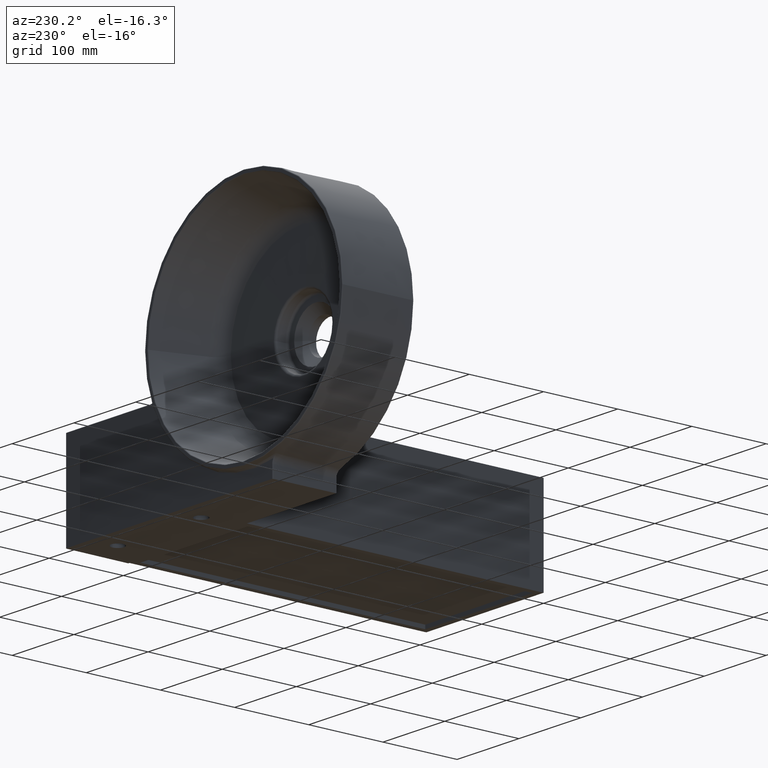
[diagram: clean part render]
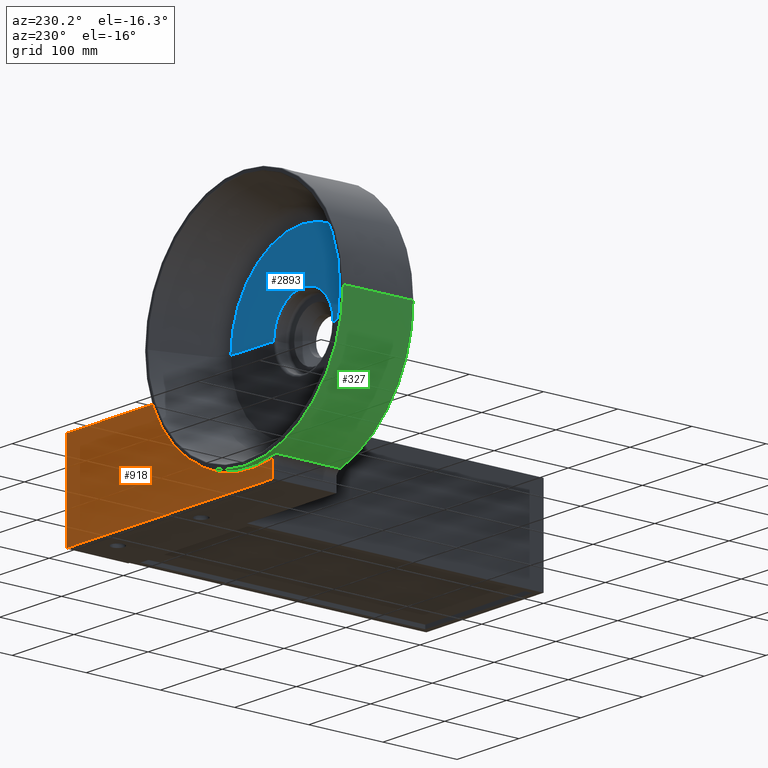
[diagram: same view with three faces highlighted in distinct colors, each labeled with its STEP entity id]
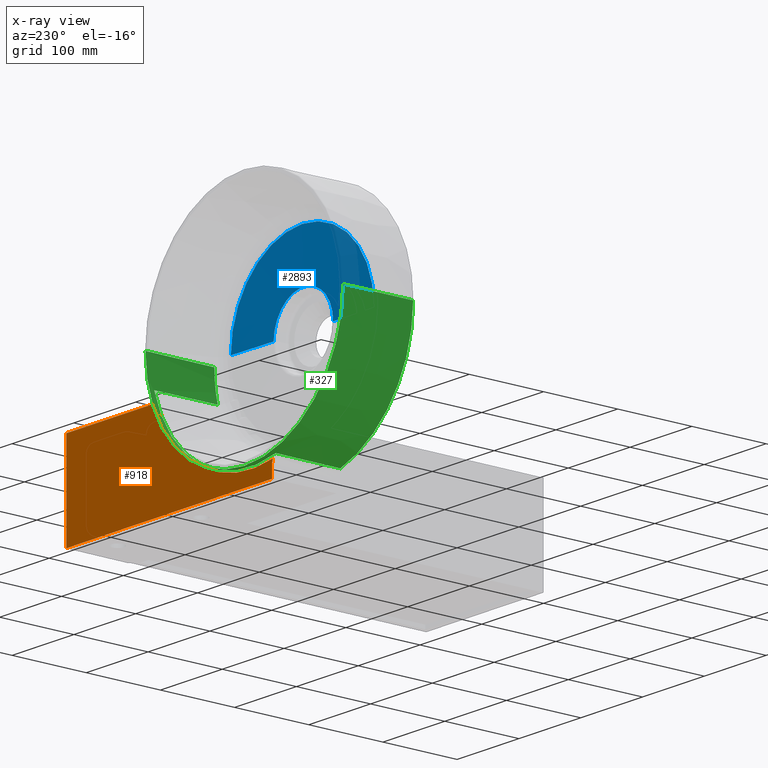
[diagram: x-ray of the same camera — body ghosted, the three highlighted faces saturated]
A machine part, auxiliary view with three faces highlighted in distinct colors.
The next image is the same camera in x-ray (body ghosted, the three faces saturated) — at least one of them is partly hidden behind the body in this view.
Their STEP definitions:

[orange] entity #918 — the highlighted planar face has unit normal (0, -1, 0).
#119 = PLANE ( 'NONE',  #2176 ) ;
#239 = CARTESIAN_POINT ( 'NONE',  ( 54.26124353223553953, 484.9999000000001388, 0.04475506283542499825 ) ) ;
#269 = CARTESIAN_POINT ( 'NONE',  ( 47.87400451862971806, 484.9998999999999683, 2.865441068382336809 ) ) ;
#295 = CARTESIAN_POINT ( 'NONE',  ( 51.78713360078179306, 484.9998999999999114, 0.5679089962209443732 ) ) ;
#301 = DIRECTION ( 'NONE',  ( 1.000000000000000000, 0.0000000000000000000, 0.0000000000000000000 ) ) ;
#332 = LINE ( 'NONE', #1223, #1333 ) ;
#509 = ORIENTED_EDGE ( 'NONE', *, *, #4640, .T. ) ;
#699 = CARTESIAN_POINT ( 'NONE',  ( 49.06468210164486976, 484.9998999999999683, 1.923244168105925800 ) ) ;
#739 = CARTESIAN_POINT ( 'NONE',  ( -142.7504725516195094, 484.9998999999999683, -124.0000000000000000 ) ) ;
#918 = ADVANCED_FACE ( 'NONE', ( #1498 ), #119, .F. ) ;
#1131 = CARTESIAN_POINT ( 'NONE',  ( 48.65456500243215743, 484.9998999999999683, 2.218054793613092102 ) ) ;
#1136 = ORIENTED_EDGE ( 'NONE', *, *, #1313, .T. ) ;
#1148 = VECTOR ( 'NONE', #5652, 1000.000000000000000 ) ;
#1162 = LINE ( 'NONE', #3261, #3219 ) ;
#1223 = CARTESIAN_POINT ( 'NONE',  ( -142.7504725516195094, 484.9998999999999683, -108.0171973813212958 ) ) ;
#1277 = DIRECTION ( 'NONE',  ( -0.0000000000000000000, -0.0000000000000000000, 1.000000000000000000 ) ) ;
#1313 = EDGE_CURVE ( 'NONE', #3852, #5022, #5565, .T. ) ;
#1333 = VECTOR ( 'NONE', #1277, 1000.000000000000000 ) ;
#1385 = CARTESIAN_POINT ( 'NONE',  ( -143.7417837622145100, 484.9998999999999683, -124.0000000000000000 ) ) ;
#1461 = CARTESIAN_POINT ( 'NONE',  ( -142.7504725516195094, 484.9998999999999683, -108.0237942346884950 ) ) ;
#1468 = CARTESIAN_POINT ( 'NONE',  ( 190.2669050271905746, 484.9999000000000251, -124.0000000000000000 ) ) ;
#1498 = FACE_OUTER_BOUND ( 'NONE', #3525, .T. ) ;
#1520 = CARTESIAN_POINT ( 'NONE',  ( -143.9651649697989342, 484.9999000000000251, -102.9717617819670323 ) ) ;
#1575 = ORIENTED_EDGE ( 'NONE', *, *, #2181, .T. ) ;
#1583 = CARTESIAN_POINT ( 'NONE',  ( 55.28654813475808538, 484.9999000000000251, 0.008688789405020269641 ) ) ;
#1702 = VECTOR ( 'NONE', #4078, 1000.000000000000000 ) ;
#1710 = CARTESIAN_POINT ( 'NONE',  ( -144.5034675971591014, 484.9998999999999683, -102.0662759887192834 ) ) ;
#1855 = CARTESIAN_POINT ( 'NONE',  ( -143.3427882202355477, 484.9999000000000251, -104.4244567769822254 ) ) ;
#1893 = VERTEX_POINT ( 'NONE', #739 ) ;
#1902 = EDGE_CURVE ( 'NONE', #5022, #4574, #2851, .T. ) ;
#1922 = B_SPLINE_CURVE_WITH_KNOTS ( 'NONE', 3,
 ( #2455, #3786, #3350, #3691, #269, #1131, #699, #2050, #5087, #5548, #295, #5519, #2485, #239, #2394, #1583 ),
 .UNSPECIFIED., .F., .F.,
 ( 4, 2, 2, 2, 2, 2, 2, 4 ),
 ( 2.647940464546886252E-17, 0.003029802555126623765, 0.004544703832689915915, 0.006059605110253208499, 0.007574506387816500215, 0.009089407665379790197, 0.01060430894294308278, 0.01211921022050637536 ),
 .UNSPECIFIED. ) ;
#2050 = CARTESIAN_POINT ( 'NONE',  ( 49.92423479617396964, 484.9999000000000251, 1.390870741829324242 ) ) ;
#2176 = AXIS2_PLACEMENT_3D ( 'NONE', #4134, #2328, #4937 ) ;
#2181 = EDGE_CURVE ( 'NONE', #2769, #3326, #1162, .T. ) ;
#2213 = ORIENTED_EDGE ( 'NONE', *, *, #2886, .F. ) ;
#2263 = CARTESIAN_POINT ( 'NONE',  ( 190.2669050271905746, 484.9999000000000251, 0.008688789405020269641 ) ) ;
#2328 = DIRECTION ( 'NONE',  ( 1.214623636765614367E-16, -1.000000000000000000, 0.0000000000000000000 ) ) ;
#2394 = CARTESIAN_POINT ( 'NONE',  ( 54.77431129875691340, 484.9999000000001956, 0.008688789405020254028 ) ) ;
#2455 = CARTESIAN_POINT ( 'NONE',  ( 45.44459139788276048, 484.9999000000000251, 6.096018689464736795 ) ) ;
#2485 = CARTESIAN_POINT ( 'NONE',  ( 53.25324964193777788, 484.9999000000000819, 0.1862578149885513457 ) ) ;
#2564 = CARTESIAN_POINT ( 'NONE',  ( 55.28654813475808538, 484.9999000000000251, 0.008688789405020269641 ) ) ;
#2597 = EDGE_CURVE ( 'NONE', #4574, #2769, #1922, .T. ) ;
#2769 = VERTEX_POINT ( 'NONE', #2564 ) ;
#2851 = CIRCLE ( 'NONE', #4226, 162.0612403866282420 ) ;
#2886 = EDGE_CURVE ( 'NONE', #1893, #4964, #4442, .T. ) ;
#2934 = ORIENTED_EDGE ( 'NONE', *, *, #1902, .T. ) ;
#3110 = CARTESIAN_POINT ( 'NONE',  ( -142.7504725516195094, 484.9998999999999683, -108.0237942346884950 ) ) ;
#3219 = VECTOR ( 'NONE', #4168, 1000.000000000000000 ) ;
#3243 = CARTESIAN_POINT ( 'NONE',  ( -142.8997914627332761, 484.9998999999997977, -105.9348183625644708 ) ) ;
#3261 = CARTESIAN_POINT ( 'NONE',  ( 191.2582162377855468, 484.9999000000000251, 0.008688789405020269641 ) ) ;
#3326 = VERTEX_POINT ( 'NONE', #2263 ) ;
#3331 = CARTESIAN_POINT ( 'NONE',  ( -108.7417837622144958, 484.9998999999999683, 55.99999999999999289 ) ) ;
#3350 = CARTESIAN_POINT ( 'NONE',  ( 46.47453096462132294, 484.9998999999999114, 4.346812748445122665 ) ) ;
#3525 = EDGE_LOOP ( 'NONE', ( #509, #1136, #2934, #5370, #1575, #5478, #2213 ) ) ;
#3621 = CARTESIAN_POINT ( 'NONE',  ( -144.2171716170429079, 484.9998999999999683, -102.5106341071520433 ) ) ;
#3691 = CARTESIAN_POINT ( 'NONE',  ( 47.50129242655609829, 484.9998999999999114, 3.220954438819485954 ) ) ;
#3701 = EDGE_CURVE ( 'NONE', #3326, #4964, #4310, .T. ) ;
#3786 = CARTESIAN_POINT ( 'NONE',  ( 45.90208691387714879, 484.9999000000000251, 5.179368606967033273 ) ) ;
#3852 = VERTEX_POINT ( 'NONE', #3110 ) ;
#4069 = CARTESIAN_POINT ( 'NONE',  ( -142.7504725516195379, 484.9999000000000251, -106.9665918545532008 ) ) ;
#4078 = DIRECTION ( 'NONE',  ( 1.000000000000000000, 1.242786967863980845E-16, 0.0000000000000000000 ) ) ;
#4134 = CARTESIAN_POINT ( 'NONE',  ( -108.7417837622144958, 484.9998999999999683, 55.99999999999999289 ) ) ;
#4168 = DIRECTION ( 'NONE',  ( 1.000000000000000000, 1.214623636765614367E-16, 1.139491522003710415E-19 ) ) ;
#4206 = CARTESIAN_POINT ( 'NONE',  ( 45.44459139788276048, 484.9999000000000251, 6.096018689464736795 ) ) ;
#4226 = AXIS2_PLACEMENT_3D ( 'NONE', #3331, #5525, #301 ) ;
#4310 = LINE ( 'NONE', #4737, #1148 ) ;
#4442 = LINE ( 'NONE', #1385, #1702 ) ;
#4574 = VERTEX_POINT ( 'NONE', #4206 ) ;
#4640 = EDGE_CURVE ( 'NONE', #1893, #3852, #332, .T. ) ;
#4737 = CARTESIAN_POINT ( 'NONE',  ( 190.2669050271905746, 484.9999000000000251, -124.0000000000000000 ) ) ;
#4937 = DIRECTION ( 'NONE',  ( 1.000000000000000000, 1.214623636765614367E-16, 0.0000000000000000000 ) ) ;
#4964 = VERTEX_POINT ( 'NONE', #1468 ) ;
#5015 = CARTESIAN_POINT ( 'NONE',  ( -144.5034675971591014, 484.9998999999999683, -102.0662759887192834 ) ) ;
#5022 = VERTEX_POINT ( 'NONE', #1710 ) ;
#5087 = CARTESIAN_POINT ( 'NONE',  ( 50.37592878264707252, 484.9998999999999683, 1.152325105348714906 ) ) ;
#5370 = ORIENTED_EDGE ( 'NONE', *, *, #2597, .T. ) ;
#5447 = CARTESIAN_POINT ( 'NONE',  ( -143.5283890361141061, 484.9998999999999683, -103.9269002651702749 ) ) ;
#5478 = ORIENTED_EDGE ( 'NONE', *, *, #3701, .T. ) ;
#5519 = CARTESIAN_POINT ( 'NONE',  ( 52.75851260637727336, 484.9999000000001388, 0.2912022903388258865 ) ) ;
#5525 = DIRECTION ( 'NONE',  ( 1.214623636765614367E-16, -1.000000000000000000, 0.0000000000000000000 ) ) ;
#5548 = CARTESIAN_POINT ( 'NONE',  ( 51.31049066366269074, 484.9998999999999114, 0.7396676557023104115 ) ) ;
#5565 = B_SPLINE_CURVE_WITH_KNOTS ( 'NONE', 3,
 ( #1461, #4069, #3243, #1855, #5447, #1520, #3621, #5015 ),
 .UNSPECIFIED., .F., .F.,
 ( 4, 2, 2, 4 ),
 ( 0.0000000000000000000, 0.003126592756669745610, 0.004689889135004618632, 0.006253185513339491221 ),
 .UNSPECIFIED. ) ;
#5652 = DIRECTION ( 'NONE',  ( -0.0000000000000000000, -0.0000000000000000000, -1.000000000000000000 ) ) ;

[blue] entity #2893 — the highlighted conical surface has half-angle 88.854 deg.
#63 = ORIENTED_EDGE ( 'NONE', *, *, #2671, .F. ) ;
#70 = CARTESIAN_POINT ( 'NONE',  ( -108.7417837622144816, 414.4662669271635878, 55.99999999999999289 ) ) ;
#73 = VERTEX_POINT ( 'NONE', #887 ) ;
#114 = CARTESIAN_POINT ( 'NONE',  ( 7.017688946232211400, 415.8180891542289146, 56.00000000000000711 ) ) ;
#323 = CIRCLE ( 'NONE', #2531, 48.16836135518230577 ) ;
#534 = CARTESIAN_POINT ( 'NONE',  ( -60.57342240703216163, 414.4662669271635878, 56.00000000000000711 ) ) ;
#887 = CARTESIAN_POINT ( 'NONE',  ( -156.9101451173967803, 414.4662669271635878, 55.99999999999999289 ) ) ;
#901 = CARTESIAN_POINT ( 'NONE',  ( -156.9101451173967803, 414.4662669271635878, 55.99999999999999289 ) ) ;
#924 = CARTESIAN_POINT ( 'NONE',  ( -108.7417837622144816, 414.4662669271635878, 55.99999999999999289 ) ) ;
#1023 = EDGE_CURVE ( 'NONE', #1144, #4176, #2734, .T. ) ;
#1101 = DIRECTION ( 'NONE',  ( 0.9998000599800070942, 0.01999600119960008235, 1.224401943241847489E-16 ) ) ;
#1144 = VERTEX_POINT ( 'NONE', #1316 ) ;
#1316 = CARTESIAN_POINT ( 'NONE',  ( -224.5012564706611613, 415.8180891542289146, 55.99999999999999289 ) ) ;
#1431 = AXIS2_PLACEMENT_3D ( 'NONE', #924, #2300, #3970 ) ;
#1594 = VECTOR ( 'NONE', #2245, 999.9999999999998863 ) ;
#1635 = EDGE_LOOP ( 'NONE', ( #63, #3391, #2812, #1877 ) ) ;
#1665 = DIRECTION ( 'NONE',  ( -1.214623636765614367E-16, 1.000000000000000000, -0.0000000000000000000 ) ) ;
#1730 = LINE ( 'NONE', #901, #1594 ) ;
#1787 = DIRECTION ( 'NONE',  ( -1.000000000000000000, 0.0000000000000000000, 0.0000000000000000000 ) ) ;
#1877 = ORIENTED_EDGE ( 'NONE', *, *, #1023, .T. ) ;
#2212 = FACE_OUTER_BOUND ( 'NONE', #1635, .T. ) ;
#2245 = DIRECTION ( 'NONE',  ( -0.9998000599800070942, 0.01999600119959983602, 0.0000000000000000000 ) ) ;
#2300 = DIRECTION ( 'NONE',  ( -1.214623636765614367E-16, 1.000000000000000000, -0.0000000000000000000 ) ) ;
#2531 = AXIS2_PLACEMENT_3D ( 'NONE', #70, #4481, #1787 ) ;
#2671 = EDGE_CURVE ( 'NONE', #3269, #4176, #5490, .T. ) ;
#2734 = CIRCLE ( 'NONE', #5386, 115.7594727084466797 ) ;
#2812 = ORIENTED_EDGE ( 'NONE', *, *, #5373, .T. ) ;
#2893 = ADVANCED_FACE ( 'NONE', ( #2212 ), #5632, .F. ) ;
#3269 = VERTEX_POINT ( 'NONE', #534 ) ;
#3391 = ORIENTED_EDGE ( 'NONE', *, *, #4747, .F. ) ;
#3970 = DIRECTION ( 'NONE',  ( -1.000000000000000000, 0.0000000000000000000, 0.0000000000000000000 ) ) ;
#4176 = VERTEX_POINT ( 'NONE', #114 ) ;
#4481 = DIRECTION ( 'NONE',  ( -1.214623636765614367E-16, 1.000000000000000000, -0.0000000000000000000 ) ) ;
#4621 = CARTESIAN_POINT ( 'NONE',  ( -108.7417837622144816, 415.8180891542289146, 55.99999999999999289 ) ) ;
#4747 = EDGE_CURVE ( 'NONE', #73, #3269, #323, .T. ) ;
#5004 = VECTOR ( 'NONE', #1101, 999.9999999999998863 ) ;
#5059 = CARTESIAN_POINT ( 'NONE',  ( -60.57342240703216873, 414.4662669271635878, 56.00000000000000000 ) ) ;
#5373 = EDGE_CURVE ( 'NONE', #73, #1144, #1730, .T. ) ;
#5386 = AXIS2_PLACEMENT_3D ( 'NONE', #4621, #1665, #5538 ) ;
#5490 = LINE ( 'NONE', #5059, #5004 ) ;
#5538 = DIRECTION ( 'NONE',  ( -1.000000000000000000, 0.0000000000000000000, 0.0000000000000000000 ) ) ;
#5632 = CONICAL_SURFACE ( 'NONE', #1431, 48.16836135518230577, 1.550798992821746269 ) ;

[green] entity #327 — the highlighted conical surface has half-angle 0.5 deg.
#209 = CARTESIAN_POINT ( 'NONE',  ( 46.58125070063473316, 400.5042632677491952, 14.32817629673589011 ) ) ;
#225 = CARTESIAN_POINT ( 'NONE',  ( -151.6162258255770325, 422.6640434231865129, -98.79478586425355502 ) ) ;
#248 = EDGE_CURVE ( 'NONE', #2855, #5068, #3298, .T. ) ;
#327 = ADVANCED_FACE ( 'NONE', ( #3736 ), #5033, .T. ) ;
#533 = EDGE_CURVE ( 'NONE', #2807, #2600, #2090, .T. ) ;
#629 = AXIS2_PLACEMENT_3D ( 'NONE', #2036, #3769, #1202 ) ;
#654 = CARTESIAN_POINT ( 'NONE',  ( -151.1904539398306042, 473.6498827579748081, -98.45063123286516316 ) ) ;
#704 = B_SPLINE_CURVE_WITH_KNOTS ( 'NONE', 3,
 ( #1628, #1204, #654, #2408, #4152, #225, #2118 ),
 .UNSPECIFIED., .F., .F.,
 ( 4, 3, 4 ),
 ( 0.0000000000000000000, 0.02000000000007155429, 0.08648316780731921116 ),
 .UNSPECIFIED. ) ;
#871 = CARTESIAN_POINT ( 'NONE',  ( 45.60961571513028190, 486.9824469290040270, 13.62936710334334478 ) ) ;
#911 = ORIENTED_EDGE ( 'NONE', *, *, #1480, .T. ) ;
#1035 = CARTESIAN_POINT ( 'NONE',  ( 45.85929588657418776, 464.8224213539530183, 13.80837334792509807 ) ) ;
#1135 = EDGE_CURVE ( 'NONE', #4874, #5068, #4785, .T. ) ;
#1202 = DIRECTION ( 'NONE',  ( 1.000000000000000000, 0.0000000000000000000, 0.0000000000000000000 ) ) ;
#1204 = CARTESIAN_POINT ( 'NONE',  ( -151.1347915304307037, 480.3161648923788221, -98.40559073882192820 ) ) ;
#1393 = DIRECTION ( 'NONE',  ( -1.000000000000000000, 0.0000000000000000000, 0.0000000000000000000 ) ) ;
#1441 = CARTESIAN_POINT ( 'NONE',  ( 52.07421645388148335, 400.5042632677491952, 56.00000000000001421 ) ) ;
#1465 = ORIENTED_EDGE ( 'NONE', *, *, #1135, .F. ) ;
#1480 = EDGE_CURVE ( 'NONE', #1601, #2855, #704, .T. ) ;
#1550 = AXIS2_PLACEMENT_3D ( 'NONE', #2284, #1910, #5347 ) ;
#1565 = B_SPLINE_CURVE_WITH_KNOTS ( 'NONE', 3,
 ( #4106, #4029, #3689, #4968, #4880, #1035, #2787 ),
 .UNSPECIFIED., .F., .F.,
 ( 4, 3, 4 ),
 ( 0.0000000000000000000, 0.02000000000052523652, 0.08648646519882190187 ),
 .UNSPECIFIED. ) ;
#1601 = VERTEX_POINT ( 'NONE', #2582 ) ;
#1628 = CARTESIAN_POINT ( 'NONE',  ( -151.0791317038564614, 486.9824469290040270, -98.36053259154833484 ) ) ;
#1799 = DIRECTION ( 'NONE',  ( -0.008726535498366154442, -0.9999619230641713097, 1.068692376572001036E-18 ) ) ;
#1821 = CARTESIAN_POINT ( 'NONE',  ( -108.7417837622144958, 486.9824469290040270, 55.99999999999999289 ) ) ;
#1829 = CARTESIAN_POINT ( 'NONE',  ( -108.7417837622144816, 400.5042632677491952, 55.99999999999999289 ) ) ;
#1910 = DIRECTION ( 'NONE',  ( -1.214623636765614367E-16, 1.000000000000000000, -0.0000000000000000000 ) ) ;
#1990 = LINE ( 'NONE', #3757, #5139 ) ;
#2036 = CARTESIAN_POINT ( 'NONE',  ( -108.7417837622144958, 494.0086265354983652, 55.99999999999999289 ) ) ;
#2072 = ORIENTED_EDGE ( 'NONE', *, *, #2192, .T. ) ;
#2090 = CIRCLE ( 'NONE', #1550, 160.8160002160959436 ) ;
#2118 = CARTESIAN_POINT ( 'NONE',  ( -151.8013216658532087, 400.5042632677491952, -98.94406126414936864 ) ) ;
#2121 = EDGE_LOOP ( 'NONE', ( #1465, #4405, #2072, #4000, #4754, #3341, #911, #3249 ) ) ;
#2159 = CIRCLE ( 'NONE', #2620, 159.9999999999999716 ) ;
#2168 = CARTESIAN_POINT ( 'NONE',  ( -108.7417837622144958, 494.0086265354983652, 55.99999999999999289 ) ) ;
#2192 = EDGE_CURVE ( 'NONE', #3236, #2807, #1990, .T. ) ;
#2233 = AXIS2_PLACEMENT_3D ( 'NONE', #1821, #4952, #4921 ) ;
#2284 = CARTESIAN_POINT ( 'NONE',  ( -108.7417837622144816, 400.5042632677491952, 55.99999999999999289 ) ) ;
#2408 = CARTESIAN_POINT ( 'NONE',  ( -151.2461189241203670, 466.9836005261396963, -98.49565411377803059 ) ) ;
#2447 = VERTEX_POINT ( 'NONE', #871 ) ;
#2471 = AXIS2_PLACEMENT_3D ( 'NONE', #1829, #3594, #5326 ) ;
#2582 = CARTESIAN_POINT ( 'NONE',  ( -151.0791317038564614, 486.9824469290040270, -98.36053259154833484 ) ) ;
#2600 = VERTEX_POINT ( 'NONE', #209 ) ;
#2620 = AXIS2_PLACEMENT_3D ( 'NONE', #2168, #5098, #1393 ) ;
#2787 = CARTESIAN_POINT ( 'NONE',  ( 45.60961571513028190, 486.9824469290040270, 13.62936710334334478 ) ) ;
#2807 = VERTEX_POINT ( 'NONE', #1441 ) ;
#2855 = VERTEX_POINT ( 'NONE', #5336 ) ;
#2941 = DIRECTION ( 'NONE',  ( 0.008726535498366397303, -0.9999619230641713097, 0.0000000000000000000 ) ) ;
#3157 = CARTESIAN_POINT ( 'NONE',  ( -268.7417837622144816, 494.0086265354983652, 56.00000000000001421 ) ) ;
#3236 = VERTEX_POINT ( 'NONE', #4070 ) ;
#3249 = ORIENTED_EDGE ( 'NONE', *, *, #248, .T. ) ;
#3298 = CIRCLE ( 'NONE', #2471, 160.8160002160959436 ) ;
#3341 = ORIENTED_EDGE ( 'NONE', *, *, #5227, .T. ) ;
#3594 = DIRECTION ( 'NONE',  ( -1.214623636765614367E-16, 1.000000000000000000, -0.0000000000000000000 ) ) ;
#3689 = CARTESIAN_POINT ( 'NONE',  ( 46.43182684639050706, 413.8363237468628313, 14.22040947820918788 ) ) ;
#3736 = FACE_OUTER_BOUND ( 'NONE', #2121, .T. ) ;
#3757 = CARTESIAN_POINT ( 'NONE',  ( 51.25821623778545444, 494.0086265354983652, 55.99999999999999289 ) ) ;
#3769 = DIRECTION ( 'NONE',  ( 1.214623636765614367E-16, -1.000000000000000000, 0.0000000000000000000 ) ) ;
#3844 = EDGE_CURVE ( 'NONE', #2600, #2447, #1565, .T. ) ;
#4000 = ORIENTED_EDGE ( 'NONE', *, *, #533, .T. ) ;
#4029 = CARTESIAN_POINT ( 'NONE',  ( 46.50656279831532913, 407.1702937586745747, 14.27429069495624780 ) ) ;
#4070 = CARTESIAN_POINT ( 'NONE',  ( 51.25821623778545444, 494.0086265354983652, 55.99999999999999289 ) ) ;
#4106 = CARTESIAN_POINT ( 'NONE',  ( 46.58125070063473316, 400.5042632677491952, 14.32817629673589011 ) ) ;
#4152 = CARTESIAN_POINT ( 'NONE',  ( -151.4311581486893772, 444.8238225135299331, -98.64531730111696106 ) ) ;
#4405 = ORIENTED_EDGE ( 'NONE', *, *, #4701, .F. ) ;
#4701 = EDGE_CURVE ( 'NONE', #3236, #4874, #2159, .T. ) ;
#4754 = ORIENTED_EDGE ( 'NONE', *, *, #3844, .T. ) ;
#4785 = LINE ( 'NONE', #5673, #5120 ) ;
#4793 = CIRCLE ( 'NONE', #2233, 160.0613165404998881 ) ;
#4874 = VERTEX_POINT ( 'NONE', #3157 ) ;
#4880 = CARTESIAN_POINT ( 'NONE',  ( 46.10843582200907775, 442.6623900822045243, 13.98742869999358440 ) ) ;
#4921 = DIRECTION ( 'NONE',  ( -1.000000000000000000, 0.0000000000000000000, 0.0000000000000000000 ) ) ;
#4952 = DIRECTION ( 'NONE',  ( -1.214623636765614367E-16, 1.000000000000000000, -0.0000000000000000000 ) ) ;
#4968 = CARTESIAN_POINT ( 'NONE',  ( 46.35704265357765053, 420.5023532292264576, 14.16653265997314826 ) ) ;
#5033 = CONICAL_SURFACE ( 'NONE', #629, 159.9999999999999432, 0.008726646259963988933 ) ;
#5068 = VERTEX_POINT ( 'NONE', #5609 ) ;
#5098 = DIRECTION ( 'NONE',  ( -1.214623636765614367E-16, 1.000000000000000000, -0.0000000000000000000 ) ) ;
#5120 = VECTOR ( 'NONE', #1799, 1000.000000000000227 ) ;
#5139 = VECTOR ( 'NONE', #2941, 1000.000000000000227 ) ;
#5227 = EDGE_CURVE ( 'NONE', #2447, #1601, #4793, .T. ) ;
#5326 = DIRECTION ( 'NONE',  ( -1.000000000000000000, 0.0000000000000000000, 0.0000000000000000000 ) ) ;
#5336 = CARTESIAN_POINT ( 'NONE',  ( -151.8013216658532087, 400.5042632677491952, -98.94406126414936864 ) ) ;
#5347 = DIRECTION ( 'NONE',  ( -1.000000000000000000, 0.0000000000000000000, 0.0000000000000000000 ) ) ;
#5609 = CARTESIAN_POINT ( 'NONE',  ( -269.5577839783104537, 400.5042632677491383, 55.99999999999999289 ) ) ;
#5673 = CARTESIAN_POINT ( 'NONE',  ( -268.7417837622144816, 494.0086265354983652, 56.00000000000001421 ) ) ;